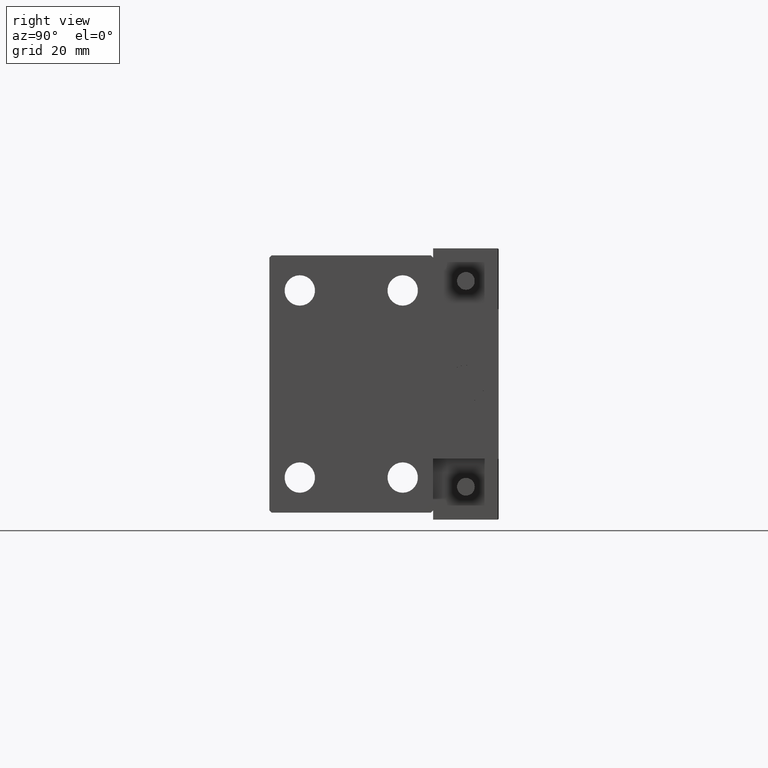
[diagram: clean part render]
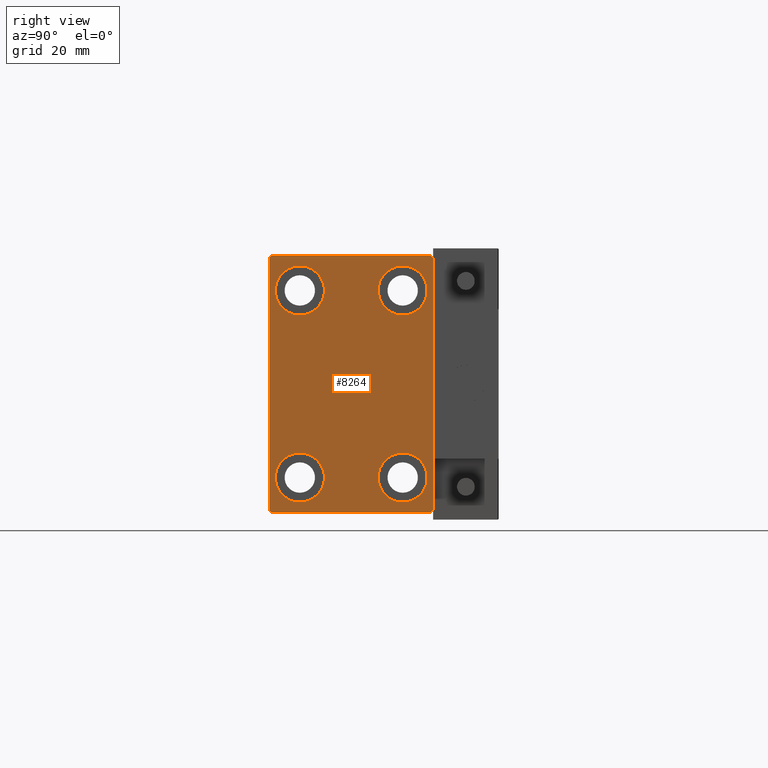
[diagram: same view with one face highlighted and labeled with its STEP entity id]
A machine part, right view. The second image highlights one B-rep face of the part: STEP entity #8264.
In plain terms, the highlighted planar face has unit normal (1, 0, 0).
Its self-contained STEP definition (entity closure, byte-faithful):
#921 = EDGE_CURVE ( 'NONE', #24742, #19153, #39897, .T. ) ;
#1127 = CARTESIAN_POINT ( 'NONE',  ( 66.00000000000000000, 11.00000000000000355, 25.25000000000000000 ) ) ;
#1275 = EDGE_CURVE ( 'NONE', #15733, #48343, #6642, .T. ) ;
#1901 = LINE ( 'NONE', #48539, #16272 ) ;
#2112 = EDGE_CURVE ( 'NONE', #19153, #24742, #20282, .T. ) ;
#2577 = DIRECTION ( 'NONE',  ( -1.000000000000000000, -0.000000000000000000, -0.000000000000000000 ) ) ;
#2869 = CARTESIAN_POINT ( 'NONE',  ( 66.00000000000000000, 17.50000000000000000, 27.00000000000000355 ) ) ;
#3395 = CARTESIAN_POINT ( 'NONE',  ( 66.00000000000000000, -11.00000000000000355, 20.00000000000000000 ) ) ;
#3583 = DIRECTION ( 'NONE',  ( -0.000000000000000000, 0.7071067811865474617, -0.7071067811865474617 ) ) ;
#3770 = ORIENTED_EDGE ( 'NONE', *, *, #37496, .T. ) ;
#4009 = CARTESIAN_POINT ( 'NONE',  ( 66.00000000000000000, -11.00000000000000355, 25.25000000000000000 ) ) ;
#4134 = EDGE_CURVE ( 'NONE', #45900, #15733, #1901, .T. ) ;
#4189 = FACE_BOUND ( 'NONE', #23312, .T. ) ;
#5192 = ORIENTED_EDGE ( 'NONE', *, *, #33361, .T. ) ;
#5477 = ORIENTED_EDGE ( 'NONE', *, *, #4134, .T. ) ;
#5821 = CARTESIAN_POINT ( 'NONE',  ( 66.00000000000000000, 16.99999999999999289, -27.50000000000000355 ) ) ;
#6122 = CIRCLE ( 'NONE', #29712, 5.250000000000000888 ) ;
#6642 = LINE ( 'NONE', #14550, #36655 ) ;
#6716 = AXIS2_PLACEMENT_3D ( 'NONE', #28061, #9461, #8705 ) ;
#6756 = LINE ( 'NONE', #41924, #41606 ) ;
#6910 = EDGE_CURVE ( 'NONE', #22697, #45900, #32223, .T. ) ;
#6968 = EDGE_CURVE ( 'NONE', #22691, #41258, #41851, .T. ) ;
#7952 = CARTESIAN_POINT ( 'NONE',  ( 66.00000000000000000, 11.00000000000000355, 20.00000000000000000 ) ) ;
#8260 = CARTESIAN_POINT ( 'NONE',  ( 66.00000000000000000, 22.25000000000024869, 22.24999999999963407 ) ) ;
#8264 = ADVANCED_FACE ( 'NONE', ( #45752, #41928, #10842, #4189, #26886 ), #15651, .T. ) ;
#8441 = AXIS2_PLACEMENT_3D ( 'NONE', #31971, #43448, #12878 ) ;
#8705 = DIRECTION ( 'NONE',  ( 0.000000000000000000, 0.000000000000000000, 1.000000000000000000 ) ) ;
#8837 = VERTEX_POINT ( 'NONE', #4009 ) ;
#8934 = CARTESIAN_POINT ( 'NONE',  ( 66.00000000000000000, 11.00000000000000355, -20.00000000000000000 ) ) ;
#9461 = DIRECTION ( 'NONE',  ( -1.000000000000000000, -0.000000000000000000, -0.000000000000000000 ) ) ;
#9693 = CARTESIAN_POINT ( 'NONE',  ( 66.00000000000000000, -17.50000000000000000, 27.00000000000001066 ) ) ;
#9750 = CARTESIAN_POINT ( 'NONE',  ( 66.00000000000000000, 17.50000000000000711, -26.99999999999998934 ) ) ;
#10303 = EDGE_CURVE ( 'NONE', #8837, #34108, #6122, .T. ) ;
#10350 = ORIENTED_EDGE ( 'NONE', *, *, #38258, .T. ) ;
#10615 = ORIENTED_EDGE ( 'NONE', *, *, #16844, .T. ) ;
#10647 = EDGE_CURVE ( 'NONE', #48343, #35536, #31567, .T. ) ;
#10842 = FACE_BOUND ( 'NONE', #11168, .T. ) ;
#11168 = EDGE_LOOP ( 'NONE', ( #42009, #22394 ) ) ;
#11473 = DIRECTION ( 'NONE',  ( 0.000000000000000000, 1.000000000000000000, 0.000000000000000000 ) ) ;
#12878 = DIRECTION ( 'NONE',  ( 0.000000000000000000, 0.000000000000000000, 1.000000000000000000 ) ) ;
#13042 = EDGE_LOOP ( 'NONE', ( #34720, #47775 ) ) ;
#13162 = LINE ( 'NONE', #36849, #14460 ) ;
#13475 = VECTOR ( 'NONE', #11473, 1000.000000000000000 ) ;
#13518 = CARTESIAN_POINT ( 'NONE',  ( 66.00000000000000000, -11.00000000000000355, -14.75000000000000000 ) ) ;
#14460 = VECTOR ( 'NONE', #44237, 1000.000000000000000 ) ;
#14550 = CARTESIAN_POINT ( 'NONE',  ( 66.00000000000000000, -22.25000000000000355, -22.25000000000000355 ) ) ;
#14614 = DIRECTION ( 'NONE',  ( 0.000000000000000000, 0.000000000000000000, 1.000000000000000000 ) ) ;
#14916 = DIRECTION ( 'NONE',  ( -0.000000000000000000, 0.7071067811865474617, 0.7071067811865474617 ) ) ;
#14920 = DIRECTION ( 'NONE',  ( 0.000000000000000000, 0.000000000000000000, -1.000000000000000000 ) ) ;
#15233 = VERTEX_POINT ( 'NONE', #28493 ) ;
#15540 = CARTESIAN_POINT ( 'NONE',  ( 66.00000000000000000, -17.50000000000000000, -27.50000000000000355 ) ) ;
#15651 = PLANE ( 'NONE',  #39430 ) ;
#15733 = VERTEX_POINT ( 'NONE', #24861 ) ;
#15800 = EDGE_CURVE ( 'NONE', #15233, #22697, #13162, .T. ) ;
#16272 = VECTOR ( 'NONE', #17441, 1000.000000000000000 ) ;
#16844 = EDGE_CURVE ( 'NONE', #30534, #37367, #32399, .T. ) ;
#17428 = VECTOR ( 'NONE', #28156, 1000.000000000000000 ) ;
#17441 = DIRECTION ( 'NONE',  ( 0.000000000000000000, 0.000000000000000000, -1.000000000000000000 ) ) ;
#17694 = CARTESIAN_POINT ( 'NONE',  ( 66.00000000000000000, 17.50000000000000711, -27.50000000000000355 ) ) ;
#17907 = ORIENTED_EDGE ( 'NONE', *, *, #1275, .T. ) ;
#17921 = AXIS2_PLACEMENT_3D ( 'NONE', #18932, #27083, #26588 ) ;
#18932 = CARTESIAN_POINT ( 'NONE',  ( 66.00000000000000000, 11.00000000000000355, 20.00000000000000000 ) ) ;
#19153 = VERTEX_POINT ( 'NONE', #49094 ) ;
#19495 = EDGE_LOOP ( 'NONE', ( #22329, #42832, #5477, #17907, #28849, #5192, #24448, #3770 ) ) ;
#20282 = CIRCLE ( 'NONE', #30866, 5.250000000000000888 ) ;
#21151 = ORIENTED_EDGE ( 'NONE', *, *, #6968, .T. ) ;
#21665 = CARTESIAN_POINT ( 'NONE',  ( 66.00000000000000000, -11.00000000000000355, -25.25000000000000000 ) ) ;
#21944 = CARTESIAN_POINT ( 'NONE',  ( 66.00000000000000000, -11.00000000000000355, -20.00000000000000000 ) ) ;
#22329 = ORIENTED_EDGE ( 'NONE', *, *, #15800, .T. ) ;
#22394 = ORIENTED_EDGE ( 'NONE', *, *, #921, .T. ) ;
#22691 = VERTEX_POINT ( 'NONE', #13518 ) ;
#22697 = VERTEX_POINT ( 'NONE', #37195 ) ;
#23312 = EDGE_LOOP ( 'NONE', ( #10350, #21151 ) ) ;
#24214 = DIRECTION ( 'NONE',  ( -1.000000000000000000, -0.000000000000000000, -0.000000000000000000 ) ) ;
#24448 = ORIENTED_EDGE ( 'NONE', *, *, #38764, .T. ) ;
#24742 = VERTEX_POINT ( 'NONE', #1127 ) ;
#24861 = CARTESIAN_POINT ( 'NONE',  ( 66.00000000000000000, -17.50000000000000000, -27.00000000000000355 ) ) ;
#26376 = CARTESIAN_POINT ( 'NONE',  ( 66.00000000000000000, 0.000000000000000000, 0.000000000000000000 ) ) ;
#26588 = DIRECTION ( 'NONE',  ( 0.000000000000000000, 0.000000000000000000, 1.000000000000000000 ) ) ;
#26833 = DIRECTION ( 'NONE',  ( -1.000000000000000000, -0.000000000000000000, -0.000000000000000000 ) ) ;
#26886 = FACE_OUTER_BOUND ( 'NONE', #19495, .T. ) ;
#27083 = DIRECTION ( 'NONE',  ( -1.000000000000000000, -0.000000000000000000, -0.000000000000000000 ) ) ;
#28061 = CARTESIAN_POINT ( 'NONE',  ( 66.00000000000000000, 11.00000000000000355, -20.00000000000000000 ) ) ;
#28130 = DIRECTION ( 'NONE',  ( -0.000000000000000000, -0.7071067811865378028, 0.7071067811865573427 ) ) ;
#28156 = DIRECTION ( 'NONE',  ( 0.000000000000000000, -0.7071067811865573427, -0.7071067811865378028 ) ) ;
#28493 = CARTESIAN_POINT ( 'NONE',  ( 66.00000000000000000, 17.00000000000001421, 27.50000000000000355 ) ) ;
#28849 = ORIENTED_EDGE ( 'NONE', *, *, #10647, .T. ) ;
#28910 = CARTESIAN_POINT ( 'NONE',  ( 66.00000000000000000, -22.24999999999976552, 22.25000000000038014 ) ) ;
#29291 = CARTESIAN_POINT ( 'NONE',  ( 66.00000000000000000, 11.00000000000000355, -14.75000000000000000 ) ) ;
#29712 = AXIS2_PLACEMENT_3D ( 'NONE', #3395, #38543, #38297 ) ;
#30044 = CARTESIAN_POINT ( 'NONE',  ( 66.00000000000000000, -11.00000000000000355, 20.00000000000000000 ) ) ;
#30066 = EDGE_LOOP ( 'NONE', ( #47334, #10615 ) ) ;
#30534 = VERTEX_POINT ( 'NONE', #29291 ) ;
#30866 = AXIS2_PLACEMENT_3D ( 'NONE', #7952, #26833, #14614 ) ;
#31032 = DIRECTION ( 'NONE',  ( -1.000000000000000000, -0.000000000000000000, -0.000000000000000000 ) ) ;
#31181 = DIRECTION ( 'NONE',  ( 1.000000000000000000, 0.000000000000000000, 0.000000000000000000 ) ) ;
#31567 = LINE ( 'NONE', #15540, #13475 ) ;
#31971 = CARTESIAN_POINT ( 'NONE',  ( 66.00000000000000000, -11.00000000000000355, -20.00000000000000000 ) ) ;
#32223 = LINE ( 'NONE', #28910, #17428 ) ;
#32399 = CIRCLE ( 'NONE', #42178, 5.250000000000000888 ) ;
#33361 = EDGE_CURVE ( 'NONE', #35536, #42766, #6756, .T. ) ;
#33651 = DIRECTION ( 'NONE',  ( 0.000000000000000000, 0.000000000000000000, 1.000000000000000000 ) ) ;
#34108 = VERTEX_POINT ( 'NONE', #37591 ) ;
#34720 = ORIENTED_EDGE ( 'NONE', *, *, #48732, .T. ) ;
#34777 = LINE ( 'NONE', #8260, #39147 ) ;
#35536 = VERTEX_POINT ( 'NONE', #5821 ) ;
#35945 = DIRECTION ( 'NONE',  ( 0.000000000000000000, 0.000000000000000000, 1.000000000000000000 ) ) ;
#36655 = VECTOR ( 'NONE', #3583, 1000.000000000000114 ) ;
#36849 = CARTESIAN_POINT ( 'NONE',  ( 66.00000000000000000, 17.50000000000000000, 27.50000000000000355 ) ) ;
#37061 = LINE ( 'NONE', #17694, #40865 ) ;
#37195 = CARTESIAN_POINT ( 'NONE',  ( 66.00000000000000000, -17.00000000000000000, 27.49999999999999645 ) ) ;
#37204 = EDGE_CURVE ( 'NONE', #37367, #30534, #49757, .T. ) ;
#37367 = VERTEX_POINT ( 'NONE', #40922 ) ;
#37496 = EDGE_CURVE ( 'NONE', #40103, #15233, #34777, .T. ) ;
#37591 = CARTESIAN_POINT ( 'NONE',  ( 66.00000000000000000, -11.00000000000000355, 14.75000000000000000 ) ) ;
#37757 = CARTESIAN_POINT ( 'NONE',  ( 66.00000000000000000, -17.00000000000000000, -27.50000000000000355 ) ) ;
#37921 = CIRCLE ( 'NONE', #46906, 5.250000000000000888 ) ;
#38258 = EDGE_CURVE ( 'NONE', #41258, #22691, #44912, .T. ) ;
#38297 = DIRECTION ( 'NONE',  ( 0.000000000000000000, 0.000000000000000000, 1.000000000000000000 ) ) ;
#38543 = DIRECTION ( 'NONE',  ( -1.000000000000000000, -0.000000000000000000, -0.000000000000000000 ) ) ;
#38764 = EDGE_CURVE ( 'NONE', #42766, #40103, #37061, .T. ) ;
#39147 = VECTOR ( 'NONE', #28130, 1000.000000000000000 ) ;
#39430 = AXIS2_PLACEMENT_3D ( 'NONE', #26376, #31181, #14920 ) ;
#39897 = CIRCLE ( 'NONE', #17921, 5.250000000000000888 ) ;
#40103 = VERTEX_POINT ( 'NONE', #2869 ) ;
#40829 = AXIS2_PLACEMENT_3D ( 'NONE', #21944, #2577, #33651 ) ;
#40865 = VECTOR ( 'NONE', #48543, 1000.000000000000000 ) ;
#40922 = CARTESIAN_POINT ( 'NONE',  ( 66.00000000000000000, 11.00000000000000355, -25.25000000000000000 ) ) ;
#41258 = VERTEX_POINT ( 'NONE', #21665 ) ;
#41606 = VECTOR ( 'NONE', #14916, 1000.000000000000114 ) ;
#41851 = CIRCLE ( 'NONE', #8441, 5.250000000000000888 ) ;
#41924 = CARTESIAN_POINT ( 'NONE',  ( 66.00000000000000000, 22.24999999999999645, -22.24999999999999645 ) ) ;
#41928 = FACE_BOUND ( 'NONE', #13042, .T. ) ;
#42009 = ORIENTED_EDGE ( 'NONE', *, *, #2112, .T. ) ;
#42178 = AXIS2_PLACEMENT_3D ( 'NONE', #8934, #24214, #35945 ) ;
#42766 = VERTEX_POINT ( 'NONE', #9750 ) ;
#42832 = ORIENTED_EDGE ( 'NONE', *, *, #6910, .T. ) ;
#43448 = DIRECTION ( 'NONE',  ( -1.000000000000000000, -0.000000000000000000, -0.000000000000000000 ) ) ;
#44237 = DIRECTION ( 'NONE',  ( 0.000000000000000000, -1.000000000000000000, -1.982541115402065110E-16 ) ) ;
#44912 = CIRCLE ( 'NONE', #40829, 5.250000000000000888 ) ;
#45604 = DIRECTION ( 'NONE',  ( 0.000000000000000000, 0.000000000000000000, 1.000000000000000000 ) ) ;
#45752 = FACE_BOUND ( 'NONE', #30066, .T. ) ;
#45900 = VERTEX_POINT ( 'NONE', #9693 ) ;
#46906 = AXIS2_PLACEMENT_3D ( 'NONE', #30044, #31032, #45604 ) ;
#47334 = ORIENTED_EDGE ( 'NONE', *, *, #37204, .T. ) ;
#47775 = ORIENTED_EDGE ( 'NONE', *, *, #10303, .T. ) ;
#48343 = VERTEX_POINT ( 'NONE', #37757 ) ;
#48539 = CARTESIAN_POINT ( 'NONE',  ( 66.00000000000000000, -17.50000000000000000, 27.49999999999999645 ) ) ;
#48543 = DIRECTION ( 'NONE',  ( 0.000000000000000000, -1.261617073437677752E-16, 1.000000000000000000 ) ) ;
#48732 = EDGE_CURVE ( 'NONE', #34108, #8837, #37921, .T. ) ;
#49094 = CARTESIAN_POINT ( 'NONE',  ( 66.00000000000000000, 11.00000000000000355, 14.75000000000000000 ) ) ;
#49757 = CIRCLE ( 'NONE', #6716, 5.250000000000000888 ) ;